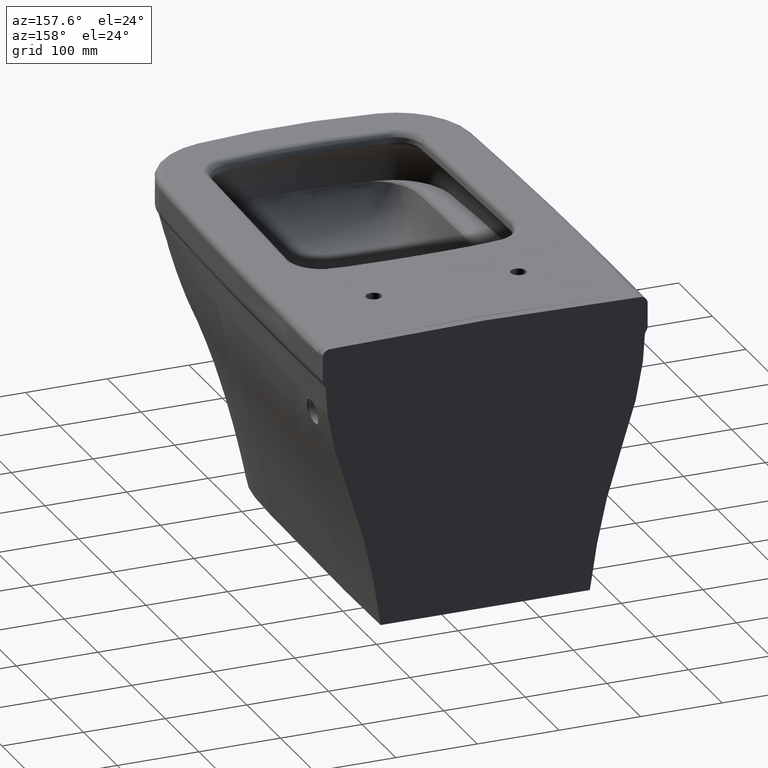
[diagram: clean part render]
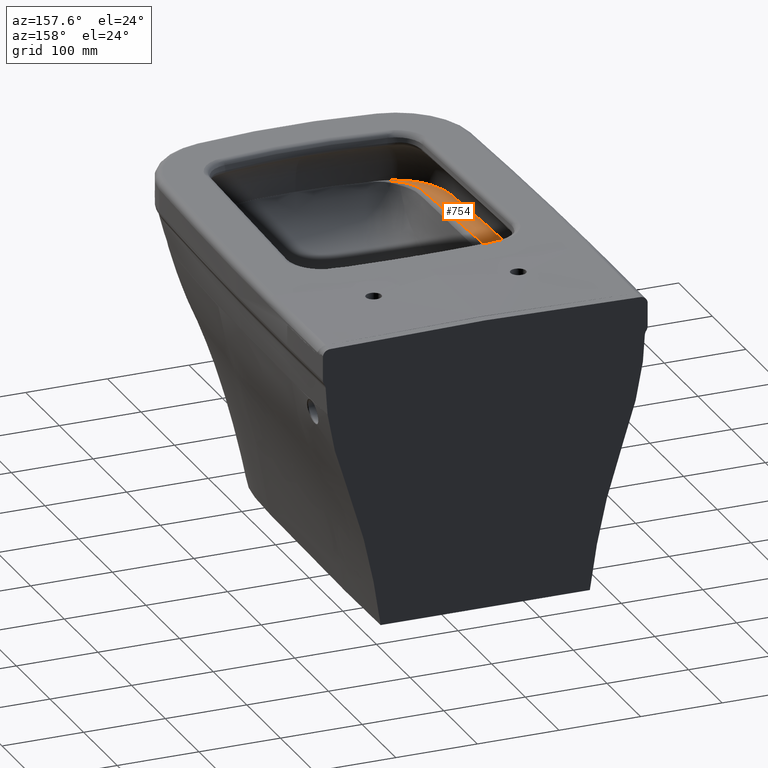
[diagram: same view with one face highlighted and labeled with its STEP entity id]
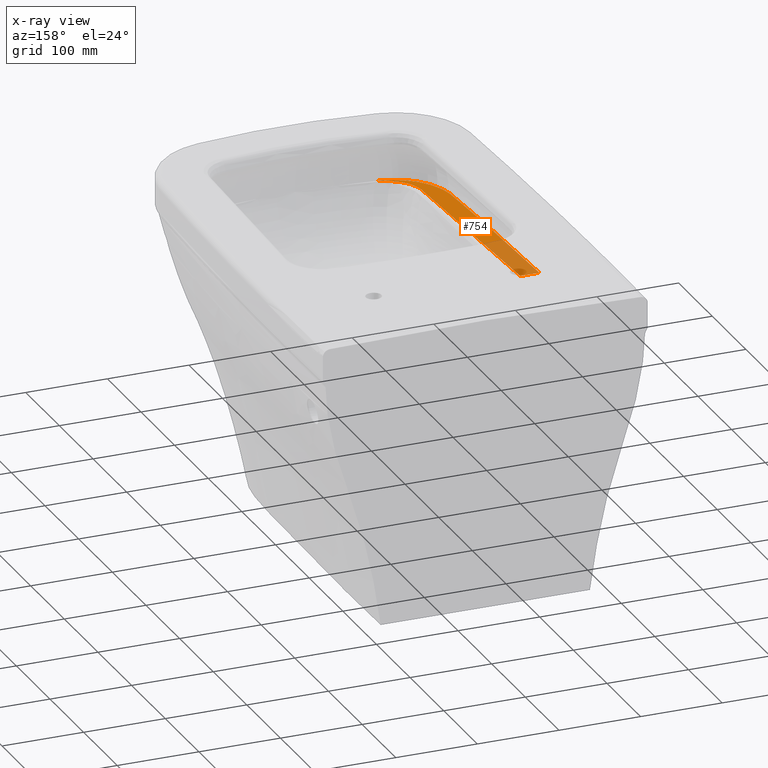
[diagram: x-ray of the same camera — body ghosted, the highlighted face saturated]
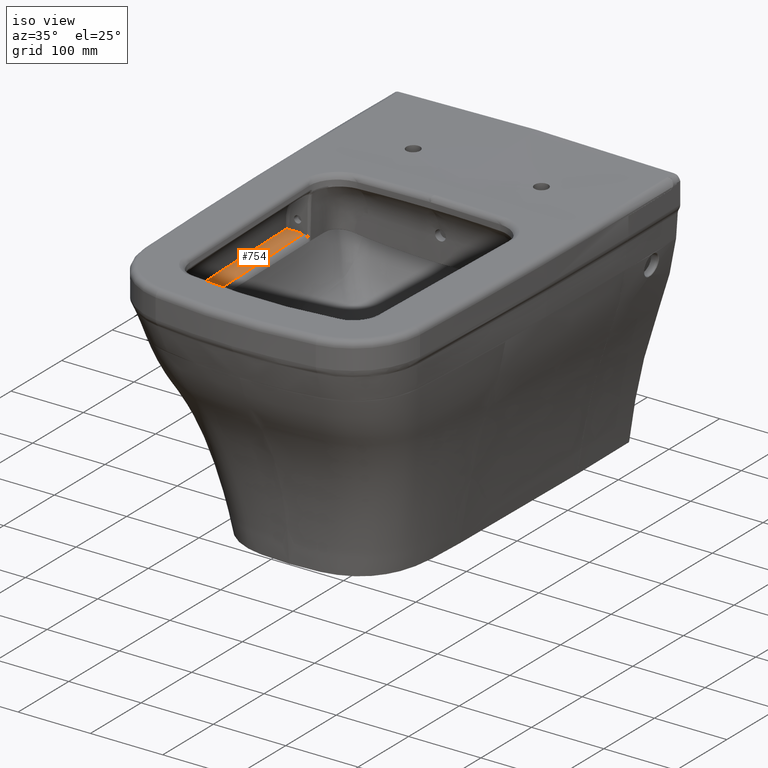
[diagram: same view with one face highlighted and labeled with its STEP entity id]
A machine part, auxiliary view. The second image highlights one B-rep face of the part: STEP entity #754.
The next image is the same camera in x-ray: the body ghosted, the highlighted face saturated — about 35% of this face is hidden behind the body in this view.
A second angle (iso view) of the same face is appended — the face is thin or edge-on in the first view.
In plain terms, the highlighted planar face has unit normal (0, 0, -1).
Its self-contained STEP definition (entity closure, byte-faithful):
#272=FACE_OUTER_BOUND('',#1060,.T.);
#554=PLANE('',#4178);
#672=LINE('',#23659,#710);
#710=VECTOR('',#4368,1.);
#754=ADVANCED_FACE('',(#272),#554,.F.);
#1060=EDGE_LOOP('',(#1428,#1429,#1430,#1431));
#1428=ORIENTED_EDGE('',*,*,#3142,.T.);
#1429=ORIENTED_EDGE('',*,*,#3143,.T.);
#1430=ORIENTED_EDGE('',*,*,#3144,.T.);
#1431=ORIENTED_EDGE('',*,*,#3145,.F.);
#2702=VERTEX_POINT('',#23532);
#2703=VERTEX_POINT('',#23533);
#2704=VERTEX_POINT('',#23558);
#2705=VERTEX_POINT('',#23658);
#3142=EDGE_CURVE('',#2702,#2703,#3773,.T.);
#3143=EDGE_CURVE('',#2703,#2704,#3774,.T.);
#3144=EDGE_CURVE('',#2704,#2705,#3775,.T.);
#3145=EDGE_CURVE('',#2702,#2705,#672,.T.);
#3773=B_SPLINE_CURVE_WITH_KNOTS('',3,(#23522,#23523,#23524,#23525,#23526,
#23527,#23528,#23529,#23530,#23531),.UNSPECIFIED.,.F.,.F.,(4,3,3,4),(0.,
0.448731741625467,0.897472570082424,1.),.UNSPECIFIED.);
#3774=B_SPLINE_CURVE_WITH_KNOTS('',3,(#23534,#23535,#23536,#23537,#23538,
#23539,#23540,#23541,#23542,#23543,#23544,#23545,#23546,#23547,#23548,#23549,
#23550,#23551,#23552,#23553,#23554,#23555,#23556,#23557),.UNSPECIFIED.,
 .F.,.F.,(4,2,2,2,2,2,2,2,2,2,2,4),(0.,0.250000000000001,0.500000000000002,
0.625000000000002,0.656250000000003,0.687500000000003,0.750000000000002,
0.812500000000002,0.875000000000001,0.937500000000001,0.96875,1.),
 .UNSPECIFIED.);
#3775=B_SPLINE_CURVE_WITH_KNOTS('',3,(#23559,#23560,#23561,#23562,#23563,
#23564,#23565,#23566,#23567,#23568,#23569,#23570,#23571,#23572,#23573,#23574,
#23575,#23576,#23577,#23578,#23579,#23580,#23581,#23582,#23583,#23584,#23585,
#23586,#23587,#23588,#23589,#23590,#23591,#23592,#23593,#23594,#23595,#23596,
#23597,#23598,#23599,#23600,#23601,#23602,#23603,#23604,#23605,#23606,#23607,
#23608,#23609,#23610,#23611,#23612,#23613,#23614,#23615,#23616,#23617,#23618,
#23619,#23620,#23621,#23622,#23623,#23624,#23625,#23626,#23627,#23628,#23629,
#23630,#23631,#23632,#23633,#23634,#23635,#23636,#23637,#23638,#23639,#23640,
#23641,#23642,#23643,#23644,#23645,#23646,#23647,#23648,#23649,#23650,#23651,
#23652,#23653,#23654,#23655,#23656,#23657),.UNSPECIFIED.,.F.,.F.,(4,1,1,
2,2,1,2,2,1,1,2,2,2,2,1,2,2,2,2,2,2,1,2,2,1,1,1,1,2,2,1,2,2,1,1,1,2,2,1,
1,1,2,2,1,1,1,1,1,2,2,1,1,1,1,1,2,2,1,1,1,1,1,2,2,1,1,4),(0.,0.0156249999999982,
0.0234374999999975,0.0273437499999972,0.0312499999999968,0.0624999999999942,
0.0664062499999935,0.0703124999999928,0.0781249999999915,0.0937499999999893,
0.109374999999987,0.117187499999986,0.124999999999986,0.132812499999985,
0.140624999999984,0.148437499999983,0.156249999999983,0.187499999999978,
0.195312499999977,0.199218749999977,0.201171874999976,0.203124999999975,
0.210937499999975,0.211914062499976,0.212890624999976,0.214843749999976,
0.218749999999976,0.226562499999975,0.230468749999975,0.234374999999975,
0.249999999999972,0.26562499999997,0.273437499999969,0.281249999999969,
0.312499999999967,0.343749999999965,0.351562499999965,0.355468749999964,
0.359374999999964,0.374999999999963,0.499999999999958,0.507812499999958,
0.515624999999958,0.531249999999957,0.562499999999956,0.624999999999955,
0.656249999999954,0.671874999999954,0.675781249999954,0.679687499999954,
0.687499999999955,0.749999999999959,0.812499999999964,0.828124999999965,
0.835937499999966,0.837890624999966,0.839843749999966,0.843749999999967,
0.874999999999974,0.90624999999998,0.914062499999982,0.917968749999983,
0.918945312499983,0.919921874999983,0.921874999999983,0.937499999999986,
1.),.UNSPECIFIED.);
#4178=AXIS2_PLACEMENT_3D('',#23660,#4369,#4370);
#4368=DIRECTION('',(1.,2.71866314495349E-14,0.));
#4369=DIRECTION('',(0.,0.,-1.));
#4370=DIRECTION('',(-1.,0.,0.));
#23522=CARTESIAN_POINT('',(-169.038095261633,-270.06023148925,-69.6013890727269));
#23523=CARTESIAN_POINT('',(-169.261969056469,-270.310395649977,-69.6013890727269));
#23524=CARTESIAN_POINT('',(-169.445755144696,-270.602649159192,-69.6013890727269));
#23525=CARTESIAN_POINT('',(-169.57421507979,-270.912809808538,-69.6013890727269));
#23526=CARTESIAN_POINT('',(-169.702676615333,-271.222974322091,-69.6013890727269));
#23527=CARTESIAN_POINT('',(-169.779351440817,-271.559602522592,-69.6013890727269));
#23528=CARTESIAN_POINT('',(-169.797873650762,-271.894805922516,-69.6013890727269));
#23529=CARTESIAN_POINT('',(-169.802163290806,-271.972437151794,-69.6013890727269));
#23530=CARTESIAN_POINT('',(-169.803432065001,-272.050294141143,-69.6013890727269));
#23531=CARTESIAN_POINT('',(-169.801674196241,-272.128023920946,-69.6013890727269));
#23532=CARTESIAN_POINT('',(-169.038095261642,-270.06023148926,-69.6013890727258));
#23533=CARTESIAN_POINT('',(-169.801704738133,-272.128022824199,-69.6013881345381));
#23534=CARTESIAN_POINT('',(-169.80179640265,-272.128023115717,-69.6013890727269));
#23535=CARTESIAN_POINT('',(-169.164028392283,-300.329732359713,-69.6013890727269));
#23536=CARTESIAN_POINT('',(-168.358882508841,-328.527035899075,-69.6013890727269));
#23537=CARTESIAN_POINT('',(-166.511430486033,-384.914352251042,-69.6013890727269));
#23538=CARTESIAN_POINT('',(-165.468561986204,-413.104078669559,-69.601389072727));
#23539=CARTESIAN_POINT('',(-163.626223439972,-455.377066378057,-69.6013890727269));
#23540=CARTESIAN_POINT('',(-163.064246006019,-469.471142562782,-69.6013890727269));
#23541=CARTESIAN_POINT('',(-161.96024774992,-487.068285115935,-69.6013890727269));
#23542=CARTESIAN_POINT('',(-161.7389221339,-490.587638170177,-69.6013890727269));
#23543=CARTESIAN_POINT('',(-161.35961483446,-497.63543177725,-69.6013890727269));
#23544=CARTESIAN_POINT('',(-161.203804795649,-501.164183880319,-69.6013890727269));
#23545=CARTESIAN_POINT('',(-160.500853828121,-511.716651706336,-69.6013890727269));
#23546=CARTESIAN_POINT('',(-159.602533913593,-518.68998630505,-69.6013890727269));
#23547=CARTESIAN_POINT('',(-155.69605353318,-532.333971847627,-69.6013890727269));
#23548=CARTESIAN_POINT('',(-152.710310295687,-539.082868028389,-69.6013890727269));
#23549=CARTESIAN_POINT('',(-144.86198367674,-551.2407351268,-69.6013890727269));
#23550=CARTESIAN_POINT('',(-140.144149991631,-556.627169200119,-69.6013890727269));
#23551=CARTESIAN_POINT('',(-128.982256891131,-565.893857388199,-69.6013890727269));
#23552=CARTESIAN_POINT('',(-122.766723784566,-569.439974281678,-69.601389072727));
#23553=CARTESIAN_POINT('',(-112.660427326193,-573.265180298256,-69.6013890727269));
#23554=CARTESIAN_POINT('',(-109.178716696864,-574.301109051425,-69.6013890727269));
#23555=CARTESIAN_POINT('',(-102.214528498107,-575.966757178394,-69.6013890727269));
#23556=CARTESIAN_POINT('',(-98.704502786934,-576.607457199344,-69.6013890727269));
#23557=CARTESIAN_POINT('',(-95.1812555526194,-577.157214653391,-69.6013890727269));
#23558=CARTESIAN_POINT('',(-95.1887698304189,-577.156038621919,-69.601389072727));
#23559=CARTESIAN_POINT('',(-95.1885761850344,-577.155296856764,-69.6013890727269));
#23560=CARTESIAN_POINT('',(-96.8634910176034,-576.716410489105,-69.6013890727269));
#23561=CARTESIAN_POINT('',(-99.3098914353665,-575.965695369791,-69.6013890727269));
#23562=CARTESIAN_POINT('',(-102.048574551682,-574.928186320232,-69.6013890727269));
#23563=CARTESIAN_POINT('',(-103.197556450586,-574.448894996772,-69.6013890727269));
#23564=CARTESIAN_POINT('',(-103.958046730599,-574.12166865048,-69.6013890727269));
#23565=CARTESIAN_POINT('',(-104.38787937758,-573.930882170825,-69.6013890727269));
#23566=CARTESIAN_POINT('',(-108.36126689899,-572.137960860212,-69.6013890727269));
#23567=CARTESIAN_POINT('',(-111.865215922052,-570.285862142109,-69.6013890727269));
#23568=CARTESIAN_POINT('',(-114.84104663447,-568.36718884058,-69.6013890727269));
#23569=CARTESIAN_POINT('',(-115.489302390054,-567.939173178921,-69.6013890727269));
#23570=CARTESIAN_POINT('',(-115.78034147007,-567.743271980689,-69.6013890727269));
#23571=CARTESIAN_POINT('',(-116.944846220781,-566.934575542994,-69.6013890727269));
#23572=CARTESIAN_POINT('',(-119.199724058701,-565.275581967727,-69.6013890727269));
#23573=CARTESIAN_POINT('',(-122.587195471047,-562.302589176225,-69.6013890727269));
#23574=CARTESIAN_POINT('',(-124.901803728902,-559.702324543675,-69.6013890727269));
#23575=CARTESIAN_POINT('',(-126.489496595285,-557.668924669506,-69.6013890727269));
#23576=CARTESIAN_POINT('',(-127.064578769313,-556.880392956514,-69.6013890727269));
#23577=CARTESIAN_POINT('',(-128.081821393544,-555.366310994403,-69.6013890727269));
#23578=CARTESIAN_POINT('',(-128.558445919113,-554.597160064725,-69.6013890727269));
#23579=CARTESIAN_POINT('',(-129.447701397154,-553.034638308124,-69.6013890727269));
#23580=CARTESIAN_POINT('',(-129.85218935592,-552.252207457954,-69.6013890727269));
#23581=CARTESIAN_POINT('',(-130.579290299157,-550.730191222371,-69.6013890727269));
#23582=CARTESIAN_POINT('',(-131.286650727656,-549.127454392336,-69.6013890727269));
#23583=CARTESIAN_POINT('',(-131.954530126677,-547.363276373399,-69.6013890727269));
#23584=CARTESIAN_POINT('',(-132.602669010959,-545.51837776001,-69.6013890727269));
#23585=CARTESIAN_POINT('',(-132.871215536262,-544.691564743335,-69.6013890727269));
#23586=CARTESIAN_POINT('',(-134.151653257955,-540.434511539654,-69.6013890727269));
#23587=CARTESIAN_POINT('',(-134.877200424614,-536.898142540376,-69.6013890727269));
#23588=CARTESIAN_POINT('',(-135.410630619569,-532.314273245864,-69.6013890727269));
#23589=CARTESIAN_POINT('',(-135.494116195993,-531.433535801224,-69.6013890727269));
#23590=CARTESIAN_POINT('',(-135.593340164924,-530.102401653714,-69.6013890727269));
#23591=CARTESIAN_POINT('',(-135.622311676808,-529.65378040986,-69.6013890727269));
#23592=CARTESIAN_POINT('',(-135.659614227993,-528.973483752053,-69.6013890727269));
#23593=CARTESIAN_POINT('',(-135.674690606373,-528.663826750661,-69.6013890727269));
#23594=CARTESIAN_POINT('',(-135.684080608733,-528.456877273051,-69.6013890727269));
#23595=CARTESIAN_POINT('',(-135.710493930615,-527.827255526941,-69.6013890727269));
#23596=CARTESIAN_POINT('',(-135.751598832413,-526.636393520411,-69.6013890727269));
#23597=CARTESIAN_POINT('',(-135.799171181572,-525.160524727031,-69.6013890727269));
#23598=CARTESIAN_POINT('',(-135.800582757923,-525.116528698028,-69.6013890727269));
#23599=CARTESIAN_POINT('',(-135.806434398056,-524.935241517502,-69.6013890727269));
#23600=CARTESIAN_POINT('',(-135.815301480634,-524.660998049863,-69.6013890727269));
#23601=CARTESIAN_POINT('',(-135.836618696639,-524.004907747418,-69.6013890727269));
#23602=CARTESIAN_POINT('',(-135.881762555276,-522.627971630715,-69.6013890727269));
#23603=CARTESIAN_POINT('',(-135.939091368862,-520.906317756048,-69.6013890727269));
#23604=CARTESIAN_POINT('',(-135.986389853266,-519.504067901223,-69.6013890727269));
#23605=CARTESIAN_POINT('',(-136.01887814825,-518.544565898268,-69.6013890727269));
#23606=CARTESIAN_POINT('',(-136.030689995475,-518.197003717037,-69.6013890727269));
#23607=CARTESIAN_POINT('',(-136.096564788635,-516.260988635589,-69.6013890727269));
#23608=CARTESIAN_POINT('',(-136.207056743545,-513.03958676975,-69.6013890727269));
#23609=CARTESIAN_POINT('',(-136.327733270168,-509.570629432866,-69.6013890727269));
#23610=CARTESIAN_POINT('',(-136.422059879526,-506.87607812856,-69.6013890727269));
#23611=CARTESIAN_POINT('',(-136.455050452112,-505.936414461341,-69.6013890727269));
#23612=CARTESIAN_POINT('',(-136.515781294985,-504.212030248263,-69.6013890727269));
#23613=CARTESIAN_POINT('',(-136.667767457308,-499.911048050073,-69.6013890727269));
#23614=CARTESIAN_POINT('',(-136.942774045777,-492.259085103858,-69.6013890727269));
#23615=CARTESIAN_POINT('',(-137.220071028307,-484.750810174487,-69.6013890727269));
#23616=CARTESIAN_POINT('',(-137.374920183206,-480.629437997351,-69.6013890727269));
#23617=CARTESIAN_POINT('',(-137.421422646218,-479.396019844562,-69.6013890727269));
#23618=CARTESIAN_POINT('',(-137.431178635488,-479.137806392748,-69.6013890727269));
#23619=CARTESIAN_POINT('',(-137.45261511255,-478.571577257722,-69.6013890727269));
#23620=CARTESIAN_POINT('',(-137.506975196359,-477.138751583625,-69.6013890727269));
#23621=CARTESIAN_POINT('',(-137.937688789279,-465.897486643656,-69.6013890727269));
#23622=CARTESIAN_POINT('',(-138.590411910105,-449.632027657382,-69.6013890727269));
#23623=CARTESIAN_POINT('',(-139.352194969021,-431.089866442583,-69.6013890727269));
#23624=CARTESIAN_POINT('',(-139.443046731212,-428.88083117298,-69.6013890727269));
#23625=CARTESIAN_POINT('',(-139.490476347558,-427.728962372798,-69.6013890727269));
#23626=CARTESIAN_POINT('',(-139.623461529649,-424.501494995597,-69.6013890727269));
#23627=CARTESIAN_POINT('',(-139.88399429459,-418.183784191495,-69.6013890727269));
#23628=CARTESIAN_POINT('',(-140.453840884761,-404.403026634027,-69.6013890727269));
#23629=CARTESIAN_POINT('',(-141.018092542807,-390.849172630301,-69.6013890727269));
#23630=CARTESIAN_POINT('',(-141.435686354217,-380.91068568125,-69.6013890727269));
#23631=CARTESIAN_POINT('',(-141.611896997694,-376.742366007667,-69.6013890727269));
#23632=CARTESIAN_POINT('',(-141.67683823917,-375.21063694066,-69.6013890727269));
#23633=CARTESIAN_POINT('',(-141.702588169126,-374.603662978453,-69.6013890727269));
#23634=CARTESIAN_POINT('',(-141.722268662098,-374.139988610605,-69.6013890727269));
#23635=CARTESIAN_POINT('',(-141.773968680024,-372.922660662414,-69.6013890727269));
#23636=CARTESIAN_POINT('',(-142.085086741662,-365.604909736963,-69.6013890727269));
#23637=CARTESIAN_POINT('',(-142.6883594108,-351.54817630506,-69.6013890727269));
#23638=CARTESIAN_POINT('',(-143.356493238126,-336.223512638973,-69.6013890727269));
#23639=CARTESIAN_POINT('',(-143.776016682482,-326.689978621541,-69.6013890727269));
#23640=CARTESIAN_POINT('',(-143.900961241296,-323.858320822516,-69.6013890727269));
#23641=CARTESIAN_POINT('',(-143.949176207867,-322.766828746076,-69.6013890727269));
#23642=CARTESIAN_POINT('',(-143.968474943858,-322.330040481662,-69.6013890727269));
#23643=CARTESIAN_POINT('',(-143.972701543957,-322.234421385287,-69.6013890727269));
#23644=CARTESIAN_POINT('',(-143.991652537546,-321.805787944657,-69.6013890727269));
#23645=CARTESIAN_POINT('',(-144.108148080519,-319.172653401111,-69.6013890727269));
#23646=CARTESIAN_POINT('',(-144.375618101758,-313.156278522749,-69.6013890727269));
#23647=CARTESIAN_POINT('',(-144.748088259801,-304.823314447105,-69.6013890727269));
#23648=CARTESIAN_POINT('',(-145.00980379623,-298.981310959232,-69.6013890727269));
#23649=CARTESIAN_POINT('',(-145.090150887645,-297.188819416093,-69.6013890727269));
#23650=CARTESIAN_POINT('',(-145.121537917447,-296.488751345321,-69.6013890727269));
#23651=CARTESIAN_POINT('',(-145.134131473554,-296.207872257293,-69.6013890727269));
#23652=CARTESIAN_POINT('',(-145.144777573313,-295.970424571745,-69.6013890727269));
#23653=CARTESIAN_POINT('',(-145.171721372568,-295.36941262682,-69.6013890727269));
#23654=CARTESIAN_POINT('',(-145.331472486716,-291.805410779487,-69.6013890727269));
#23655=CARTESIAN_POINT('',(-145.980848625471,-277.294265074812,-69.6013890727269));
#23656=CARTESIAN_POINT('',(-146.274531853275,-270.616129258662,-69.6013890727269));
#23657=CARTESIAN_POINT('',(-146.291971575652,-270.06023148925,-69.6013890727269));
#23658=CARTESIAN_POINT('',(-146.291971575652,-270.060231489259,-69.6013890727269));
#23659=CARTESIAN_POINT('',(-156.274483759443,-270.060231489259,-69.6013890727269));
#23660=CARTESIAN_POINT('',(1.18431087893912E-14,-218.21993904355,-69.6013890727269));